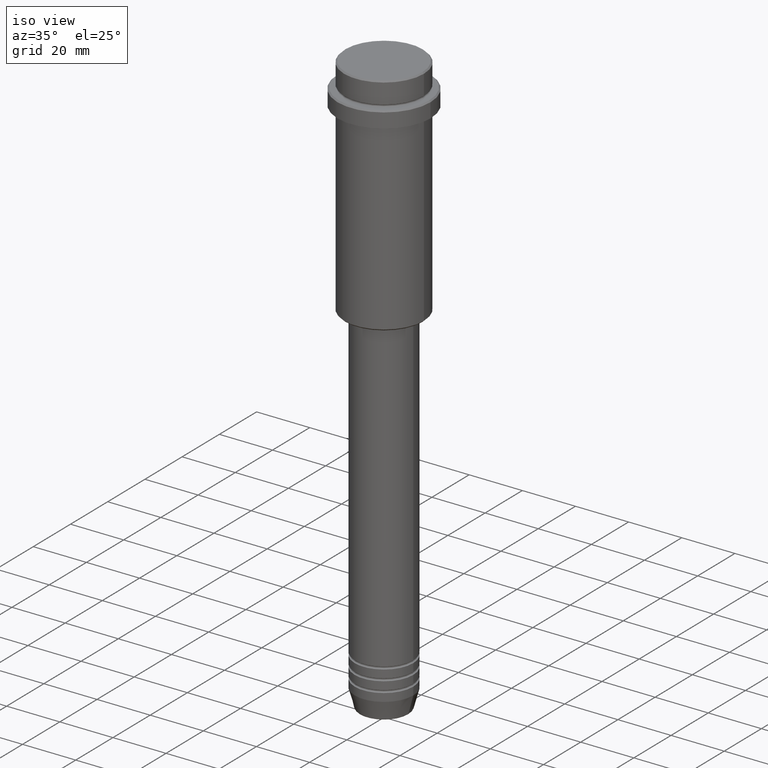
[diagram: clean part render]
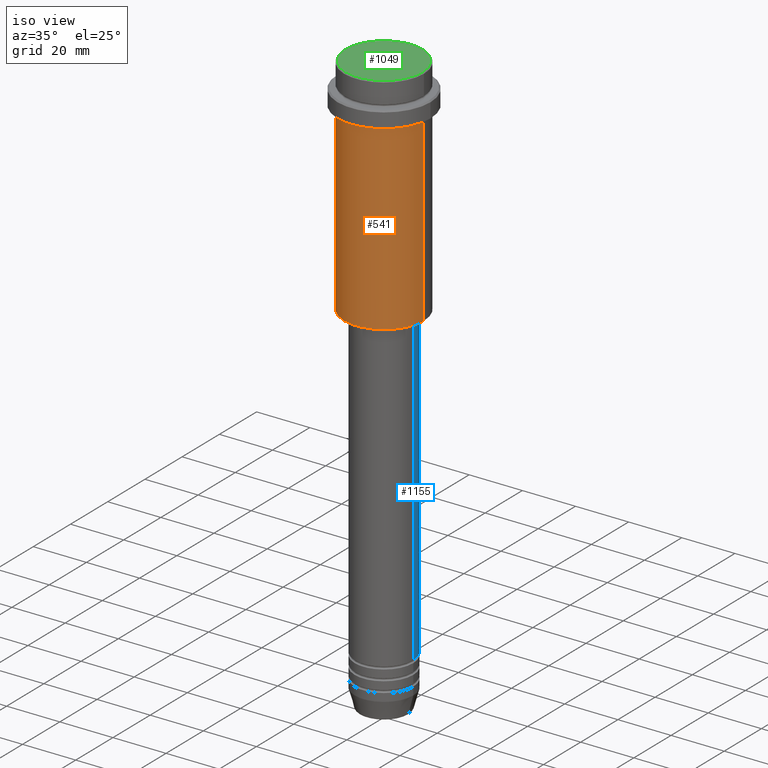
[diagram: same view with three faces highlighted in distinct colors, each labeled with its STEP entity id]
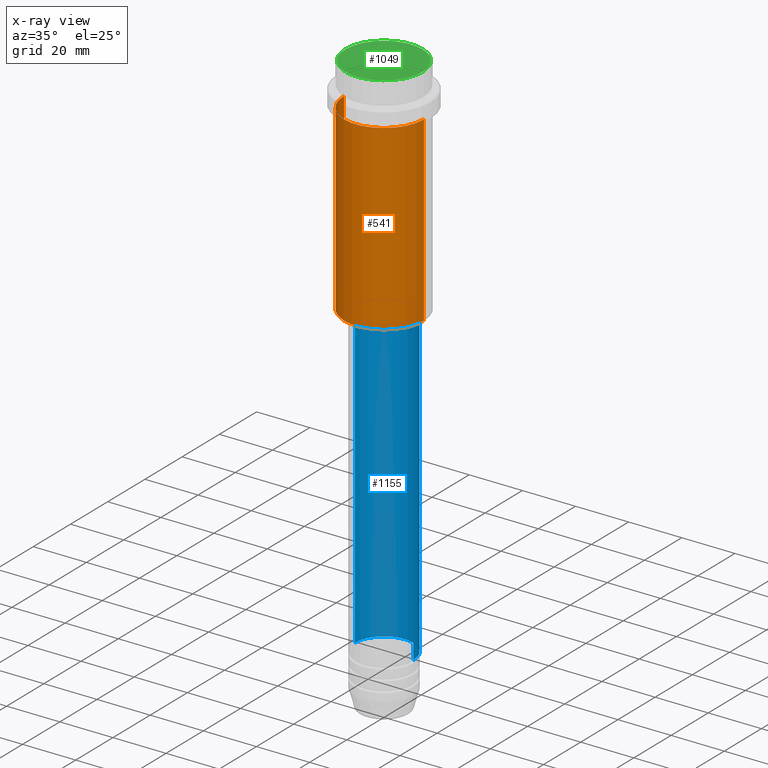
[diagram: x-ray of the same camera — body ghosted, the three highlighted faces saturated]
A machine part, iso view with three faces highlighted in distinct colors.
The next image is the same camera in x-ray (body ghosted, the three faces saturated) — at least one of them is partly hidden behind the body in this view.
Their STEP definitions:

[orange] entity #541 — the highlighted cylindrical surface (partial cylindrical patch) has radius 15 mm, axis along (-0, -0, 1).
#11 = EDGE_CURVE ( 'NONE', #587, #671, #1044, .T. ) ;
#37 = CARTESIAN_POINT ( 'NONE',  ( -15.00000000000000000, 1.836970198721029589E-15, 0.000000000000000000 ) ) ;
#56 = LINE ( 'NONE', #37, #918 ) ;
#62 = DIRECTION ( 'NONE',  ( -0.000000000000000000, -0.000000000000000000, 1.000000000000000000 ) ) ;
#178 = ORIENTED_EDGE ( 'NONE', *, *, #887, .T. ) ;
#217 = CARTESIAN_POINT ( 'NONE',  ( -15.00000000000000000, 1.836970198721029589E-15, -84.50000000000002842 ) ) ;
#234 = CYLINDRICAL_SURFACE ( 'NONE', #625, 15.00000000000000000 ) ;
#261 = EDGE_CURVE ( 'NONE', #827, #1042, #597, .T. ) ;
#322 = DIRECTION ( 'NONE',  ( -0.000000000000000000, -0.000000000000000000, 1.000000000000000000 ) ) ;
#388 = AXIS2_PLACEMENT_3D ( 'NONE', #941, #62, #1040 ) ;
#462 = VECTOR ( 'NONE', #322, 1000.000000000000000 ) ;
#463 = ORIENTED_EDGE ( 'NONE', *, *, #261, .T. ) ;
#541 = ADVANCED_FACE ( 'NONE', ( #561 ), #234, .T. ) ;
#561 = FACE_OUTER_BOUND ( 'NONE', #705, .T. ) ;
#571 = ORIENTED_EDGE ( 'NONE', *, *, #654, .F. ) ;
#573 = DIRECTION ( 'NONE',  ( -0.000000000000000000, -0.000000000000000000, 1.000000000000000000 ) ) ;
#587 = VERTEX_POINT ( 'NONE', #1187 ) ;
#597 = CIRCLE ( 'NONE', #1104, 15.00000000000000000 ) ;
#607 = CARTESIAN_POINT ( 'NONE',  ( 0.000000000000000000, 0.000000000000000000, -84.50000000000002842 ) ) ;
#625 = AXIS2_PLACEMENT_3D ( 'NONE', #1208, #573, #847 ) ;
#654 = EDGE_CURVE ( 'NONE', #827, #587, #56, .T. ) ;
#671 = VERTEX_POINT ( 'NONE', #1109 ) ;
#705 = EDGE_LOOP ( 'NONE', ( #571, #463, #178, #1298 ) ) ;
#719 = DIRECTION ( 'NONE',  ( -0.000000000000000000, -0.000000000000000000, 1.000000000000000000 ) ) ;
#827 = VERTEX_POINT ( 'NONE', #217 ) ;
#847 = DIRECTION ( 'NONE',  ( 1.000000000000000000, 0.000000000000000000, 0.000000000000000000 ) ) ;
#854 = LINE ( 'NONE', #1289, #462 ) ;
#887 = EDGE_CURVE ( 'NONE', #1042, #671, #854, .T. ) ;
#918 = VECTOR ( 'NONE', #1227, 1000.000000000000000 ) ;
#941 = CARTESIAN_POINT ( 'NONE',  ( 0.000000000000000000, 0.000000000000000000, -16.00000000000000000 ) ) ;
#1036 = DIRECTION ( 'NONE',  ( -1.000000000000000000, 0.000000000000000000, 0.000000000000000000 ) ) ;
#1040 = DIRECTION ( 'NONE',  ( 1.000000000000000000, 0.000000000000000000, 0.000000000000000000 ) ) ;
#1042 = VERTEX_POINT ( 'NONE', #1095 ) ;
#1044 = CIRCLE ( 'NONE', #388, 15.00000000000000178 ) ;
#1095 = CARTESIAN_POINT ( 'NONE',  ( 15.00000000000000000, 0.000000000000000000, -84.50000000000002842 ) ) ;
#1104 = AXIS2_PLACEMENT_3D ( 'NONE', #607, #719, #1036 ) ;
#1109 = CARTESIAN_POINT ( 'NONE',  ( 15.00000000000000178, 0.000000000000000000, -16.00000000000000000 ) ) ;
#1187 = CARTESIAN_POINT ( 'NONE',  ( -15.00000000000000355, 1.836970198721029983E-15, -16.00000000000000000 ) ) ;
#1208 = CARTESIAN_POINT ( 'NONE',  ( 0.000000000000000000, 0.000000000000000000, 0.000000000000000000 ) ) ;
#1227 = DIRECTION ( 'NONE',  ( -0.000000000000000000, -0.000000000000000000, 1.000000000000000000 ) ) ;
#1289 = CARTESIAN_POINT ( 'NONE',  ( 15.00000000000000000, 0.000000000000000000, 0.000000000000000000 ) ) ;
#1298 = ORIENTED_EDGE ( 'NONE', *, *, #11, .F. ) ;

[blue] entity #1155 — the highlighted cylindrical surface (edge-blend (fillet) strip) has radius 11 mm, axis along (-0, -0, 1).
#12 = ORIENTED_EDGE ( 'NONE', *, *, #1213, .F. ) ;
#28 = ORIENTED_EDGE ( 'NONE', *, *, #1233, .F. ) ;
#40 = DIRECTION ( 'NONE',  ( -0.000000000000000000, -0.000000000000000000, 1.000000000000000000 ) ) ;
#66 = CYLINDRICAL_SURFACE ( 'NONE', #758, 11.00000000000000000 ) ;
#86 = CIRCLE ( 'NONE', #347, 11.00000000000000000 ) ;
#169 = DIRECTION ( 'NONE',  ( 1.000000000000000000, 0.000000000000000000, 0.000000000000000000 ) ) ;
#188 = CARTESIAN_POINT ( 'NONE',  ( 0.000000000000000000, 0.000000000000000000, -86.00000000000001421 ) ) ;
#254 = VECTOR ( 'NONE', #40, 1000.000000000000000 ) ;
#294 = FACE_OUTER_BOUND ( 'NONE', #1327, .T. ) ;
#310 = DIRECTION ( 'NONE',  ( -0.000000000000000000, -0.000000000000000000, 1.000000000000000000 ) ) ;
#347 = AXIS2_PLACEMENT_3D ( 'NONE', #1186, #310, #738 ) ;
#438 = EDGE_CURVE ( 'NONE', #586, #820, #1015, .T. ) ;
#483 = CARTESIAN_POINT ( 'NONE',  ( 11.00000000000000000, 0.000000000000000000, -200.9999999999999147 ) ) ;
#586 = VERTEX_POINT ( 'NONE', #1315 ) ;
#615 = DIRECTION ( 'NONE',  ( 1.000000000000000000, 0.000000000000000000, 0.000000000000000000 ) ) ;
#704 = DIRECTION ( 'NONE',  ( -0.000000000000000000, -0.000000000000000000, 1.000000000000000000 ) ) ;
#738 = DIRECTION ( 'NONE',  ( 1.000000000000000000, 0.000000000000000000, 0.000000000000000000 ) ) ;
#758 = AXIS2_PLACEMENT_3D ( 'NONE', #1160, #704, #169 ) ;
#816 = DIRECTION ( 'NONE',  ( -0.000000000000000000, -0.000000000000000000, 1.000000000000000000 ) ) ;
#820 = VERTEX_POINT ( 'NONE', #863 ) ;
#863 = CARTESIAN_POINT ( 'NONE',  ( -10.99999999999999822, 1.347111479062088207E-15, -86.00000000000001421 ) ) ;
#898 = ORIENTED_EDGE ( 'NONE', *, *, #438, .T. ) ;
#917 = LINE ( 'NONE', #1243, #1415 ) ;
#1015 = LINE ( 'NONE', #1211, #254 ) ;
#1098 = VERTEX_POINT ( 'NONE', #1374 ) ;
#1135 = ORIENTED_EDGE ( 'NONE', *, *, #1286, .T. ) ;
#1155 = ADVANCED_FACE ( 'NONE', ( #294 ), #66, .T. ) ;
#1160 = CARTESIAN_POINT ( 'NONE',  ( 0.000000000000000000, 0.000000000000000000, 0.000000000000000000 ) ) ;
#1178 = DIRECTION ( 'NONE',  ( -0.000000000000000000, -0.000000000000000000, 1.000000000000000000 ) ) ;
#1186 = CARTESIAN_POINT ( 'NONE',  ( 0.000000000000000000, 0.000000000000000000, -200.9999999999999147 ) ) ;
#1211 = CARTESIAN_POINT ( 'NONE',  ( -11.00000000000000000, 1.347111479062088405E-15, 0.000000000000000000 ) ) ;
#1213 = EDGE_CURVE ( 'NONE', #1098, #820, #1341, .T. ) ;
#1229 = AXIS2_PLACEMENT_3D ( 'NONE', #188, #816, #615 ) ;
#1231 = VERTEX_POINT ( 'NONE', #483 ) ;
#1233 = EDGE_CURVE ( 'NONE', #1231, #1098, #917, .T. ) ;
#1243 = CARTESIAN_POINT ( 'NONE',  ( 11.00000000000000000, 0.000000000000000000, 0.000000000000000000 ) ) ;
#1286 = EDGE_CURVE ( 'NONE', #1231, #586, #86, .T. ) ;
#1315 = CARTESIAN_POINT ( 'NONE',  ( -11.00000000000000000, 1.347111479062088405E-15, -200.9999999999999147 ) ) ;
#1327 = EDGE_LOOP ( 'NONE', ( #1135, #898, #12, #28 ) ) ;
#1341 = CIRCLE ( 'NONE', #1229, 10.99999999999999822 ) ;
#1374 = CARTESIAN_POINT ( 'NONE',  ( 10.99999999999999822, 0.000000000000000000, -86.00000000000001421 ) ) ;
#1415 = VECTOR ( 'NONE', #1178, 1000.000000000000000 ) ;

[green] entity #1049 — the highlighted planar face has unit normal (0, -0, 1).
#164 = ORIENTED_EDGE ( 'NONE', *, *, #570, .T. ) ;
#213 = EDGE_LOOP ( 'NONE', ( #1144, #164 ) ) ;
#250 = VERTEX_POINT ( 'NONE', #405 ) ;
#256 = FACE_OUTER_BOUND ( 'NONE', #213, .T. ) ;
#286 = VERTEX_POINT ( 'NONE', #522 ) ;
#357 = DIRECTION ( 'NONE',  ( 1.000000000000000000, 0.000000000000000000, 0.000000000000000000 ) ) ;
#405 = CARTESIAN_POINT ( 'NONE',  ( -14.49999999999998401, 0.000000000000000000, 0.000000000000000000 ) ) ;
#425 = DIRECTION ( 'NONE',  ( -0.000000000000000000, -0.000000000000000000, 1.000000000000000000 ) ) ;
#522 = CARTESIAN_POINT ( 'NONE',  ( 14.49999999999998401, 1.806354028742345013E-15, 0.000000000000000000 ) ) ;
#569 = DIRECTION ( 'NONE',  ( 0.000000000000000000, -0.000000000000000000, 1.000000000000000000 ) ) ;
#570 = EDGE_CURVE ( 'NONE', #286, #250, #888, .T. ) ;
#779 = AXIS2_PLACEMENT_3D ( 'NONE', #884, #569, #357 ) ;
#823 = EDGE_CURVE ( 'NONE', #250, #286, #1067, .T. ) ;
#877 = PLANE ( 'NONE',  #779 ) ;
#884 = CARTESIAN_POINT ( 'NONE',  ( 0.000000000000000000, 0.000000000000000000, 0.000000000000000000 ) ) ;
#888 = CIRCLE ( 'NONE', #1156, 14.49999999999998401 ) ;
#956 = AXIS2_PLACEMENT_3D ( 'NONE', #1411, #425, #1174 ) ;
#1049 = ADVANCED_FACE ( 'NONE', ( #256 ), #877, .T. ) ;
#1067 = CIRCLE ( 'NONE', #956, 14.49999999999998401 ) ;
#1144 = ORIENTED_EDGE ( 'NONE', *, *, #823, .T. ) ;
#1156 = AXIS2_PLACEMENT_3D ( 'NONE', #1277, #1166, #1396 ) ;
#1166 = DIRECTION ( 'NONE',  ( -0.000000000000000000, -0.000000000000000000, 1.000000000000000000 ) ) ;
#1174 = DIRECTION ( 'NONE',  ( 1.000000000000000000, 0.000000000000000000, 0.000000000000000000 ) ) ;
#1277 = CARTESIAN_POINT ( 'NONE',  ( 0.000000000000000000, 0.000000000000000000, 0.000000000000000000 ) ) ;
#1396 = DIRECTION ( 'NONE',  ( 1.000000000000000000, 0.000000000000000000, 0.000000000000000000 ) ) ;
#1411 = CARTESIAN_POINT ( 'NONE',  ( 0.000000000000000000, 0.000000000000000000, 0.000000000000000000 ) ) ;